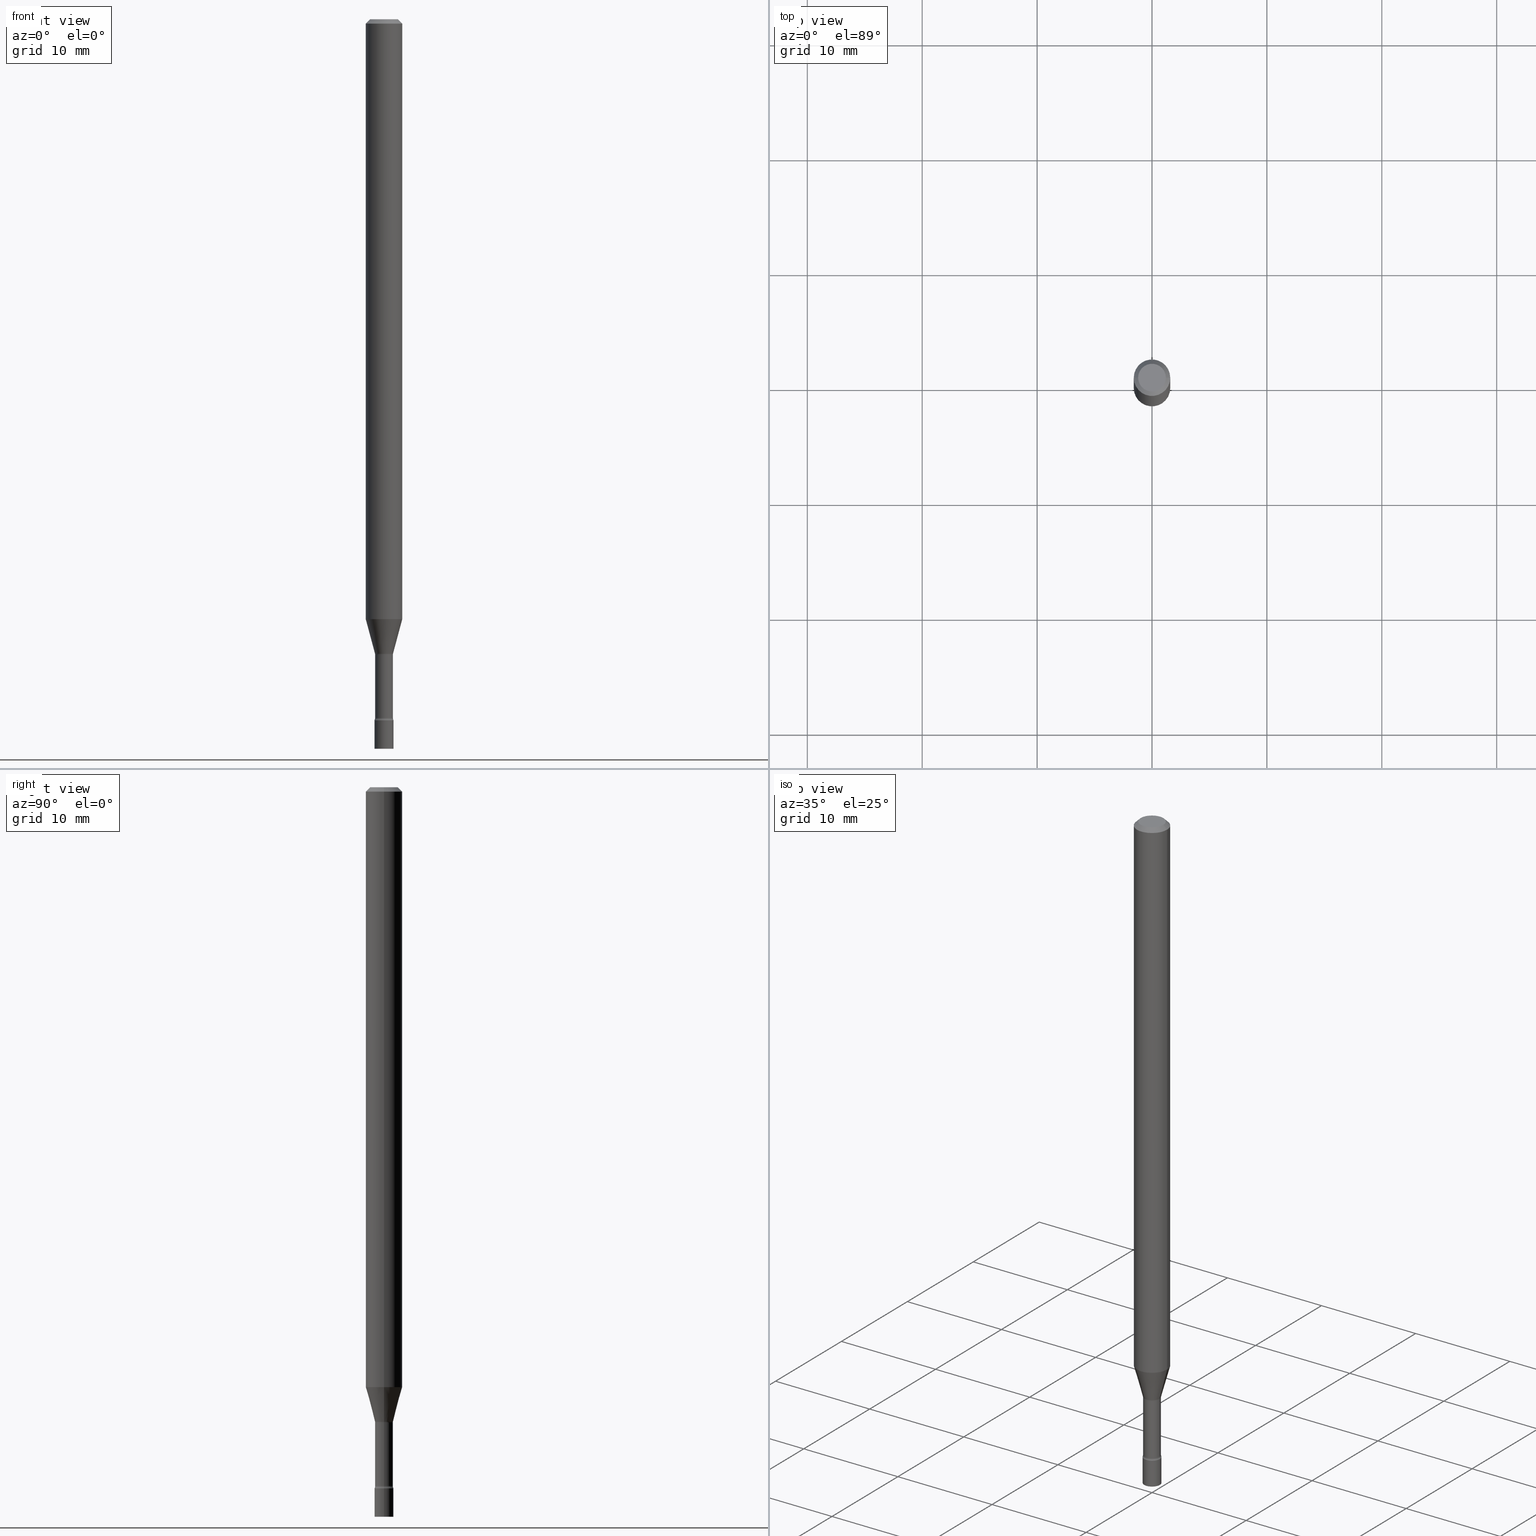
[diagram: canonical four-view strip — front | top / right | iso, engineering-drawing reading convention]
A machine part, canonical four-view strip (front | top / right | iso — engineering-drawing reading convention). The complete STEP part file that produces these views, byte-faithful:
ISO-10303-21;
HEADER;
FILE_DESCRIPTION (( 'STEP AP203' ),
    '1' );
FILE_NAME ('09698.STEP',
    '2024-03-09T00:57:55',
    ( '' ),
    ( '' ),
    'SwSTEP 2.0',
    'SolidWorks 2023',
    '' );
FILE_SCHEMA (( 'CONFIG_CONTROL_DESIGN' ));
ENDSEC;

DATA;
#1 = CARTESIAN_POINT ( 'NONE',  ( 5.314229926075595065E-29, -7.587311917570229795E-15, -2.173092501787273090 ) ) ;
#2 = COORDINATED_UNIVERSAL_TIME_OFFSET ( 5, 0, .BEHIND. ) ;
#3 = DIRECTION ( 'NONE',  ( 1.000000000000000000, -6.982962677686265922E-15, 4.876176775795935793E-29 ) ) ;
#4 = CONICAL_SURFACE ( 'NONE', #186, 0.03106111260566397914, 0.2617993877991498519 ) ;
#5 = MANIFOLD_SOLID_BREP ( 'Body-Move/Copy2[2]', #91 ) ;
#6 = DIRECTION ( 'NONE',  ( -2.445468806185136877E-29, 3.491481338843145188E-15, 1.000000000000000000 ) ) ;
#7 = PRODUCT_RELATED_PRODUCT_CATEGORY ( 'detail', '', ( #224 ) ) ;
#8 = DIRECTION ( 'NONE',  ( 1.000000000000000000, -6.982962677686266711E-15, 4.876176775795935793E-29 ) ) ;
#9 = AXIS2_PLACEMENT_3D ( 'NONE', #301, #376, #464 ) ;
#10 = ORIENTED_EDGE ( 'NONE', *, *, #505, .F. ) ;
#11 = DIRECTION ( 'NONE',  ( 1.000000000000000000, -6.982962677686287221E-15, 0.000000000000000000 ) ) ;
#12 = CARTESIAN_POINT ( 'NONE',  ( 3.316907271900976096E-16, 0.04749999999999999362, -1.803023190589839165E-16 ) ) ;
#13 = ORIENTED_EDGE ( 'NONE', *, *, #243, .F. ) ;
#14 = VERTEX_POINT ( 'NONE', #256 ) ;
#15 = APPROVAL_PERSON_ORGANIZATION ( #499, #404, #461 ) ;
#16 = VECTOR ( 'NONE', #208, 39.37007874015748143 ) ;
#17 = DIRECTION ( 'NONE',  ( 2.445468806185136597E-29, -3.491481338843145583E-15, -1.000000000000000000 ) ) ;
#18 = ORIENTED_EDGE ( 'NONE', *, *, #243, .T. ) ;
#19 = ADVANCED_FACE ( 'NONE', ( #96 ), #490, .T. ) ;
#20 = PERSON_AND_ORGANIZATION ( #158, #23 ) ;
#21 = DIRECTION ( 'NONE',  ( 1.000000000000000000, -6.982962677686276177E-15, 0.000000000000000000 ) ) ;
#22 = AXIS2_PLACEMENT_3D ( 'NONE', #294, #338, #63 ) ;
#23 = ORGANIZATION ( 'UNSPECIFIED', 'UNSPECIFIED', '' ) ;
#24 = APPROVAL_DATE_TIME ( #382, #404 ) ;
#25 = ADVANCED_FACE ( 'NONE', ( #59 ), #106, .F. ) ;
#26 = DIRECTION ( 'NONE',  ( -2.445468806185136597E-29, 3.491481338843145583E-15, 1.000000000000000000 ) ) ;
#27 = ORIENTED_EDGE ( 'NONE', *, *, #66, .F. ) ;
#28 = CC_DESIGN_DATE_AND_TIME_ASSIGNMENT ( #380, #218, ( #253 ) ) ;
#29 = CARTESIAN_POINT ( 'NONE',  ( 0.06250000000000000000, -4.888073874380389458E-16, -0.01500000000000003067 ) ) ;
#30 = ADVANCED_FACE ( 'NONE', ( #185 ), #4, .T. ) ;
#31 = DIRECTION ( 'NONE',  ( -1.000000000000000000, 6.982962677686266711E-15, 0.000000000000000000 ) ) ;
#32 = DIRECTION ( 'NONE',  ( -2.445468806185136597E-29, 3.491481338843145583E-15, 1.000000000000000000 ) ) ;
#33 = VECTOR ( 'NONE', #485, 39.37007874015748143 ) ;
#34 = CONICAL_SURFACE ( 'NONE', #372, 0.03106111260566397914, 0.2617993877991498519 ) ;
#35 = APPLICATION_PROTOCOL_DEFINITION ( 'international standard', 'config_control_design', 1994, #263 ) ;
#36 = ADVANCED_FACE ( 'NONE', ( #383 ), #358, .T. ) ;
#37 = DIRECTION ( 'NONE',  ( 0.2588190451025211281, 1.565188264969622954E-15, 0.9659258262890679791 ) ) ;
#38 = EDGE_LOOP ( 'NONE', ( #200, #143, #206, #470 ) ) ;
#39 = EDGE_CURVE ( 'NONE', #153, #374, #337, .T. ) ;
#40 = CARTESIAN_POINT ( 'NONE',  ( -0.04749999999999999362, 3.578768372314209027E-16, -2.891391092787141902E-17 ) ) ;
#41 = ORIENTED_EDGE ( 'NONE', *, *, #90, .T. ) ;
#42 = DIRECTION ( 'NONE',  ( -2.445468806185136597E-29, 3.491481338843145583E-15, 1.000000000000000000 ) ) ;
#43 = ORIENTED_EDGE ( 'NONE', *, *, #39, .T. ) ;
#44 = CARTESIAN_POINT ( 'NONE',  ( 5.027299341488075466E-29, -7.177651087263634781E-15, -2.055760976698174591 ) ) ;
#45 = CIRCLE ( 'NONE', #321, 0.06250000000000000000 ) ;
#46 = CC_DESIGN_PERSON_AND_ORGANIZATION_ASSIGNMENT ( #427, #163, ( #403 ) ) ;
#47 = CALENDAR_DATE ( 2024, 8, 3 ) ;
#48 = PLANE ( 'NONE',  #388 ) ;
#49 = DATE_TIME_ROLE ( 'classification_date' ) ;
#50 = DIRECTION ( 'NONE',  ( -2.445468806185136877E-29, 3.491481338843145188E-15, 1.000000000000000000 ) ) ;
#51 =( GEOMETRIC_REPRESENTATION_CONTEXT ( 3 ) GLOBAL_UNCERTAINTY_ASSIGNED_CONTEXT ( ( #149 ) ) GLOBAL_UNIT_ASSIGNED_CONTEXT ( ( #155, #270, #226 ) ) REPRESENTATION_CONTEXT ( 'NONE', 'WORKASPACE' ) );
#52 = EDGE_CURVE ( 'NONE', #139, #474, #472, .T. ) ;
#53 = CARTESIAN_POINT ( 'NONE',  ( -0.03249999999999995948, -8.155611786779205250E-15, -2.402000000000000135 ) ) ;
#54 = AXIS2_PLACEMENT_3D ( 'NONE', #279, #202, #473 ) ;
#55 = ORIENTED_EDGE ( 'NONE', *, *, #308, .F. ) ;
#56 = ADVANCED_FACE ( 'NONE', ( #291 ), #459, .T. ) ;
#57 = DIRECTION ( 'NONE',  ( -1.000000000000000000, 6.982962677686265922E-15, -4.876176775795935793E-29 ) ) ;
#58 = DIRECTION ( 'NONE',  ( 1.000000000000000000, -6.982962677686266711E-15, 4.876176775795935793E-29 ) ) ;
#59 = FACE_OUTER_BOUND ( 'NONE', #136, .T. ) ;
#60 = CARTESIAN_POINT ( 'NONE',  ( 0.03055000000000000077, -7.814196355365236006E-15, -2.176974787463811012 ) ) ;
#61 = FACE_OUTER_BOUND ( 'NONE', #118, .T. ) ;
#62 = DESIGN_CONTEXT ( 'detailed design', #121, 'design' ) ;
#63 = DIRECTION ( 'NONE',  ( 1.000000000000000000, -6.982962677686258033E-15, 0.000000000000000000 ) ) ;
#64 = ORIENTED_EDGE ( 'NONE', *, *, #514, .F. ) ;
#65 = CIRCLE ( 'NONE', #54, 0.01499999999999992485 ) ;
#66 = EDGE_CURVE ( 'NONE', #109, #425, #225, .T. ) ;
#67 = DIRECTION ( 'NONE',  ( 1.000000000000000000, -6.982962677686266711E-15, 4.876176775795935793E-29 ) ) ;
#68 = DIRECTION ( 'NONE',  ( 1.000000000000000000, -6.982962677686265922E-15, 4.876176775795935793E-29 ) ) ;
#69 = AXIS2_PLACEMENT_3D ( 'NONE', #515, #42, #303 ) ;
#70 = VECTOR ( 'NONE', #50, 39.37007874015748143 ) ;
#71 = DIRECTION ( 'NONE',  ( -2.445468806185136877E-29, 3.491481338843145188E-15, 1.000000000000000000 ) ) ;
#72 = EDGE_LOOP ( 'NONE', ( #289, #162, #344, #311 ) ) ;
#73 = ADVANCED_FACE ( 'NONE', ( #61 ), #498, .T. ) ;
#74 = CIRCLE ( 'NONE', #262, 0.03055000000000008750 ) ;
#75 = DIRECTION ( 'NONE',  ( -2.445468806185136597E-29, 3.491481338843145583E-15, 1.000000000000000000 ) ) ;
#76 = ORIENTED_EDGE ( 'NONE', *, *, #125, .T. ) ;
#77 = AXIS2_PLACEMENT_3D ( 'NONE', #313, #194, #119 ) ;
#78 = LINE ( 'NONE', #83, #214 ) ;
#79 = VERTEX_POINT ( 'NONE', #53 ) ;
#80 = EDGE_LOOP ( 'NONE', ( #441, #280 ) ) ;
#81 = DIRECTION ( 'NONE',  ( 0.000000000000000000, 0.000000000000000000, 1.000000000000000000 ) ) ;
#82 = AXIS2_PLACEMENT_3D ( 'NONE', #443, #81, #114 ) ;
#83 = CARTESIAN_POINT ( 'NONE',  ( -0.06250000000000000000, 3.840629472727443437E-16, -0.01500000000000003067 ) ) ;
#84 = ORIENTED_EDGE ( 'NONE', *, *, #361, .T. ) ;
#85 = CC_DESIGN_PERSON_AND_ORGANIZATION_ASSIGNMENT ( #188, #339, ( #191 ) ) ;
#86 = ADVANCED_FACE ( 'NONE', ( #141 ), #343, .T. ) ;
#87 = AXIS2_PLACEMENT_3D ( 'NONE', #255, #419, #58 ) ;
#88 = LINE ( 'NONE', #405, #70 ) ;
#89 = FACE_OUTER_BOUND ( 'NONE', #116, .T. ) ;
#90 = EDGE_CURVE ( 'NONE', #466, #425, #345, .T. ) ;
#91 = CLOSED_SHELL ( 'NONE', ( #281, #379, #146, #73, #249, #157, #30, #413, #36, #92, #322, #151, #97, #25 ) ) ;
#92 = ADVANCED_FACE ( 'NONE', ( #267 ), #215, .F. ) ;
#93 = PLANE ( 'NONE',  #254 ) ;
#94 = APPROVAL_STATUS ( 'not_yet_approved' ) ;
#95 = ORIENTED_EDGE ( 'NONE', *, *, #449, .F. ) ;
#96 = FACE_OUTER_BOUND ( 'NONE', #72, .T. ) ;
#97 = ADVANCED_FACE ( 'NONE', ( #98 ), #295, .T. ) ;
#98 = FACE_OUTER_BOUND ( 'NONE', #359, .T. ) ;
#99 = VECTOR ( 'NONE', #389, 39.37007874015748143 ) ;
#100 = DIRECTION ( 'NONE',  ( 1.000000000000000000, -6.982962677686265922E-15, 4.876176775795935232E-29 ) ) ;
#101 = PERSON_AND_ORGANIZATION_ROLE ( 'creator' ) ;
#102 = CARTESIAN_POINT ( 'NONE',  ( 0.03250000000000000111, -8.613484462926039396E-15, -2.402000000000000135 ) ) ;
#103 = DIRECTION ( 'NONE',  ( -2.445468806185136597E-29, 3.491481338843145583E-15, 1.000000000000000000 ) ) ;
#104 = ORIENTED_EDGE ( 'NONE', *, *, #127, .T. ) ;
#105 = SECURITY_CLASSIFICATION_LEVEL ( 'unclassified' ) ;
#106 = TOROIDAL_SURFACE ( 'NONE', #417, 0.04555000000000000021, 0.01500000000000002720 ) ;
#107 = CARTESIAN_POINT ( 'NONE',  ( 5.323723934594267807E-29, -7.600866845561919593E-15, -2.176974787463811012 ) ) ;
#108 = ORIENTED_EDGE ( 'NONE', *, *, #113, .F. ) ;
#109 = VERTEX_POINT ( 'NONE', #217 ) ;
#110 = CC_DESIGN_PERSON_AND_ORGANIZATION_ASSIGNMENT ( #502, #148, ( #191 ) ) ;
#111 = FACE_OUTER_BOUND ( 'NONE', #228, .T. ) ;
#112 = ORIENTED_EDGE ( 'NONE', *, *, #125, .F. ) ;
#113 = EDGE_CURVE ( 'NONE', #109, #153, #518, .T. ) ;
#114 = DIRECTION ( 'NONE',  ( 1.000000000000000000, 0.000000000000000000, 0.000000000000000000 ) ) ;
#115 = DIRECTION ( 'NONE',  ( -2.445468806185136597E-29, 3.491481338843145583E-15, 1.000000000000000000 ) ) ;
#116 = EDGE_LOOP ( 'NONE', ( #252, #10 ) ) ;
#117 = FACE_OUTER_BOUND ( 'NONE', #377, .T. ) ;
#118 = EDGE_LOOP ( 'NONE', ( #453, #154, #274, #314 ) ) ;
#119 = DIRECTION ( 'NONE',  ( 1.000000000000000000, -6.982962677686266711E-15, 0.000000000000000000 ) ) ;
#120 = ORIENTED_EDGE ( 'NONE', *, *, #354, .F. ) ;
#121 = APPLICATION_CONTEXT ( 'configuration controlled 3d designs of mechanical parts and assemblies' ) ;
#122 = DIRECTION ( 'NONE',  ( 1.000000000000000000, -6.982962677686267499E-15, 4.876681293081646444E-29 ) ) ;
#123 = CIRCLE ( 'NONE', #319, 0.03106111260566397914 ) ;
#124 = CIRCLE ( 'NONE', #77, 0.06250000000000000000 ) ;
#125 = EDGE_CURVE ( 'NONE', #235, #292, #326, .T. ) ;
#126 = LINE ( 'NONE', #130, #517 ) ;
#127 = EDGE_CURVE ( 'NONE', #269, #466, #131, .T. ) ;
#128 = CARTESIAN_POINT ( 'NONE',  ( 0.04749999999999999362, -4.035134999187579609E-16, -2.891391092786643933E-17 ) ) ;
#129 = CC_DESIGN_APPROVAL ( #170, ( #253 ) ) ;
#130 = CARTESIAN_POINT ( 'NONE',  ( -0.06250000000000000000, 4.440892098500626162E-16, -3.074334431409316114E-30 ) ) ;
#131 = CIRCLE ( 'NONE', #437, 0.01500000000000002720 ) ;
#132 = EDGE_CURVE ( 'NONE', #109, #79, #65, .T. ) ;
#133 = EDGE_CURVE ( 'NONE', #139, #452, #355, .T. ) ;
#134 = DIMENSIONAL_EXPONENTS ( 1.000000000000000000, 0.000000000000000000, 0.000000000000000000, 0.000000000000000000, 0.000000000000000000, 0.000000000000000000, 0.000000000000000000 ) ;
#135 = EDGE_CURVE ( 'NONE', #272, #504, #315, .T. ) ;
#136 = EDGE_LOOP ( 'NONE', ( #237, #203, #104, #41 ) ) ;
#137 = CYLINDRICAL_SURFACE ( 'NONE', #265, 0.06250000000000000000 ) ;
#138 = CARTESIAN_POINT ( 'NONE',  ( 0.000000000000000000, 0.000000000000000000, 0.000000000000000000 ) ) ;
#139 = VERTEX_POINT ( 'NONE', #469 ) ;
#140 = CARTESIAN_POINT ( 'NONE',  ( 5.323723934594267807E-29, -7.600866845561919593E-15, -2.176974787463811012 ) ) ;
#141 = FACE_OUTER_BOUND ( 'NONE', #38, .T. ) ;
#142 = AXIS2_PLACEMENT_3D ( 'NONE', #414, #384, #257 ) ;
#143 = ORIENTED_EDGE ( 'NONE', *, *, #299, .T. ) ;
#144 = AXIS2_PLACEMENT_3D ( 'NONE', #12, #330, #454 ) ;
#145 = EDGE_CURVE ( 'NONE', #504, #435, #124, .T. ) ;
#146 = ADVANCED_FACE ( 'NONE', ( #117 ), #401, .F. ) ;
#147 = DIRECTION ( 'NONE',  ( -2.445468806185136597E-29, 3.491481338843145583E-15, 1.000000000000000000 ) ) ;
#148 = PERSON_AND_ORGANIZATION_ROLE ( 'design_supplier' ) ;
#149 = UNCERTAINTY_MEASURE_WITH_UNIT (LENGTH_MEASURE( 1.000000000000000082E-05 ), #155, 'distance_accuracy_value', 'NONE');
#150 = CARTESIAN_POINT ( 'NONE',  ( -0.03106111260566397914, -7.366609438304418534E-15, -2.173092501787273090 ) ) ;
#151 = ADVANCED_FACE ( 'NONE', ( #400 ), #463, .F. ) ;
#152 = DIRECTION ( 'NONE',  ( -2.445468806185136597E-29, 3.491481338843145583E-15, 1.000000000000000000 ) ) ;
#153 = VERTEX_POINT ( 'NONE', #360 ) ;
#154 = ORIENTED_EDGE ( 'NONE', *, *, #308, .T. ) ;
#155 =( CONVERSION_BASED_UNIT ( 'INCH', #397 ) LENGTH_UNIT ( ) NAMED_UNIT ( #134 ) );
#156 = DIRECTION ( 'NONE',  ( -2.445468806185136597E-29, 3.491481338843145583E-15, 1.000000000000000000 ) ) ;
#157 = ADVANCED_FACE ( 'NONE', ( #346 ), #34, .T. ) ;
#158 = PERSON ( 'UNSPECIFIED', 'UNSPECIFIED', 'UNSPECIFIED', ('UNSPECIFIED'), ('UNSPECIFIED'), ('UNSPECIFIED') ) ;
#159 = LINE ( 'NONE', #467, #172 ) ;
#160 = ORIENTED_EDGE ( 'NONE', *, *, #39, .F. ) ;
#161 = CARTESIAN_POINT ( 'NONE',  ( 0.03106111260566397914, -7.804210507622991467E-15, -2.173092501787273090 ) ) ;
#162 = ORIENTED_EDGE ( 'NONE', *, *, #442, .T. ) ;
#163 = PERSON_AND_ORGANIZATION_ROLE ( 'classification_officer' ) ;
#164 = AXIS2_PLACEMENT_3D ( 'NONE', #179, #455, #100 ) ;
#165 = CARTESIAN_POINT ( 'NONE',  ( 0.06250000000000000000, -7.614086254619026450E-15, -2.055760976698174591 ) ) ;
#166 = ORIENTED_EDGE ( 'NONE', *, *, #233, .T. ) ;
#167 = DIRECTION ( 'NONE',  ( 7.105427357601001859E-15, 1.000000000000000000, -3.491481338843145583E-15 ) ) ;
#168 = CALENDAR_DATE ( 2024, 8, 3 ) ;
#169 = CALENDAR_DATE ( 2024, 8, 3 ) ;
#170 = APPROVAL ( #246, 'UNSPECIFIED' ) ;
#171 = CIRCLE ( 'NONE', #391, 0.03055000000000000077 ) ;
#172 = VECTOR ( 'NONE', #37, 39.37007874015748854 ) ;
#173 = EDGE_CURVE ( 'NONE', #374, #79, #275, .T. ) ;
#174 = LINE ( 'NONE', #369, #33 ) ;
#175 = AXIS2_PLACEMENT_3D ( 'NONE', #107, #492, #178 ) ;
#176 = COORDINATED_UNIVERSAL_TIME_OFFSET ( 5, 0, .BEHIND. ) ;
#177 = CARTESIAN_POINT ( 'NONE',  ( 5.874016072456698366E-29, -8.386538175901236044E-15, -2.402000000000000135 ) ) ;
#178 = DIRECTION ( 'NONE',  ( 1.000000000000000000, -6.982962677686264344E-15, 0.000000000000000000 ) ) ;
#179 = CARTESIAN_POINT ( 'NONE',  ( 0.000000000000000000, 0.000000000000000000, 0.000000000000000000 ) ) ;
#180 = MANIFOLD_SOLID_BREP ( 'Body-Move/Copy2[1]', #367 ) ;
#181 = DIRECTION ( 'NONE',  ( -2.445468806185136597E-29, 3.491481338843145583E-15, 1.000000000000000000 ) ) ;
#182 = CC_DESIGN_PERSON_AND_ORGANIZATION_ASSIGNMENT ( #471, #312, ( #224 ) ) ;
#183 = DIRECTION ( 'NONE',  ( 1.000000000000000000, -6.982962677686262766E-15, 4.883557194083111780E-29 ) ) ;
#184 = ORIENTED_EDGE ( 'NONE', *, *, #113, .T. ) ;
#185 = FACE_OUTER_BOUND ( 'NONE', #496, .T. ) ;
#186 = AXIS2_PLACEMENT_3D ( 'NONE', #462, #26, #222 ) ;
#187 = EDGE_CURVE ( 'NONE', #402, #425, #409, .T. ) ;
#188 = PERSON_AND_ORGANIZATION ( #158, #23 ) ;
#189 = DIRECTION ( 'NONE',  ( -1.000000000000000000, 6.982962677686266711E-15, 0.000000000000000000 ) ) ;
#190 = EDGE_LOOP ( 'NONE', ( #55, #112, #195, #84 ) ) ;
#191 = PRODUCT_DEFINITION_FORMATION_WITH_SPECIFIED_SOURCE ( 'ANY', '', #224, .NOT_KNOWN. ) ;
#192 = DIRECTION ( 'NONE',  ( -2.438088387897960049E-29, 3.491481338843145188E-15, 1.000000000000000000 ) ) ;
#193 = EDGE_CURVE ( 'NONE', #235, #435, #78, .T. ) ;
#194 = DIRECTION ( 'NONE',  ( -2.445468806185136597E-29, 3.491481338843145583E-15, 1.000000000000000000 ) ) ;
#195 = ORIENTED_EDGE ( 'NONE', *, *, #193, .T. ) ;
#196 = EDGE_CURVE ( 'NONE', #269, #272, #159, .T. ) ;
#197 = MECHANICAL_CONTEXT ( 'NONE', #263, 'mechanical' ) ;
#198 = EDGE_LOOP ( 'NONE', ( #399, #493, #408, #520 ) ) ;
#199 = CYLINDRICAL_SURFACE ( 'NONE', #69, 0.06250000000000000000 ) ;
#200 = ORIENTED_EDGE ( 'NONE', *, *, #52, .T. ) ;
#201 = CIRCLE ( 'NONE', #239, 0.06250000000000000000 ) ;
#202 = DIRECTION ( 'NONE',  ( 7.105427357601001859E-15, 1.000000000000000000, -3.491481338843145583E-15 ) ) ;
#203 = ORIENTED_EDGE ( 'NONE', *, *, #283, .F. ) ;
#204 = LOCAL_TIME ( 19, 57, 55.00000000000000000, #2 ) ;
#205 = AXIS2_PLACEMENT_3D ( 'NONE', #285, #241, #8 ) ;
#206 = ORIENTED_EDGE ( 'NONE', *, *, #430, .F. ) ;
#207 = APPROVAL_PERSON_ORGANIZATION ( #320, #300, #445 ) ;
#208 = DIRECTION ( 'NONE',  ( 0.7071067811865475727, -7.319954787623256045E-15, -0.7071067811865474617 ) ) ;
#209 = AXIS2_PLACEMENT_3D ( 'NONE', #177, #329, #491 ) ;
#210 = AXIS2_PLACEMENT_3D ( 'NONE', #429, #192, #68 ) ;
#211 = EDGE_CURVE ( 'NONE', #292, #235, #457, .T. ) ;
#212 = CARTESIAN_POINT ( 'NONE',  ( 5.323723934594267807E-29, -7.600866845561919593E-15, -2.176974787463811012 ) ) ;
#213 = CIRCLE ( 'NONE', #22, 0.03250000000000000111 ) ;
#214 = VECTOR ( 'NONE', #238, 39.37007874015748143 ) ;
#215 = PLANE ( 'NONE',  #144 ) ;
#216 = DIRECTION ( 'NONE',  ( 2.438088387897960049E-29, -3.491481338843145188E-15, -1.000000000000000000 ) ) ;
#217 = CARTESIAN_POINT ( 'NONE',  ( -0.03055000000000008750, -8.149628471819570133E-15, -2.394604224178627838 ) ) ;
#218 = DATE_TIME_ROLE ( 'creation_date' ) ;
#219 = CARTESIAN_POINT ( 'NONE',  ( 3.668203209277712094E-31, -5.237222008264728876E-17, -0.01500000000000003067 ) ) ;
#220 = CALENDAR_DATE ( 2024, 8, 3 ) ;
#221 = CARTESIAN_POINT ( 'NONE',  ( -0.06250000000000000000, -3.170922443823078906E-15, -0.01500000000000003067 ) ) ;
#222 = DIRECTION ( 'NONE',  ( 1.000000000000000000, -6.982962677686265922E-15, 0.000000000000000000 ) ) ;
#223 = AXIS2_PLACEMENT_3D ( 'NONE', #138, #103, #506 ) ;
#224 = PRODUCT ( '09698', '09698', '', ( #197 ) ) ;
#225 = LINE ( 'NONE', #500, #293 ) ;
#226 =( NAMED_UNIT ( * ) SI_UNIT ( $, .STERADIAN. ) SOLID_ANGLE_UNIT ( ) );
#227 = DIRECTION ( 'NONE',  ( 1.000000000000000000, -6.982962677686258033E-15, 4.883557194083110098E-29 ) ) ;
#228 = EDGE_LOOP ( 'NONE', ( #328, #335, #432, #232 ) ) ;
#229 = ORIENTED_EDGE ( 'NONE', *, *, #433, .T. ) ;
#230 =( LENGTH_UNIT ( ) NAMED_UNIT ( * ) SI_UNIT ( $, .METRE. ) );
#231 = DIRECTION ( 'NONE',  ( -6.982962677686266711E-15, -1.000000000000000000, 3.491481338843145583E-15 ) ) ;
#232 = ORIENTED_EDGE ( 'NONE', *, *, #127, .F. ) ;
#233 = EDGE_CURVE ( 'NONE', #14, #452, #486, .T. ) ;
#234 = CARTESIAN_POINT ( 'NONE',  ( -0.04555000000000000021, -7.277214629423194105E-15, -2.176974787463811012 ) ) ;
#235 = VERTEX_POINT ( 'NONE', #40 ) ;
#236 = DIRECTION ( 'NONE',  ( 1.000000000000000000, -6.982962677686265922E-15, 0.000000000000000000 ) ) ;
#237 = ORIENTED_EDGE ( 'NONE', *, *, #187, .F. ) ;
#238 = DIRECTION ( 'NONE',  ( -0.7071067811865475727, 2.468850131082257455E-15, -0.7071067811865474617 ) ) ;
#239 = AXIS2_PLACEMENT_3D ( 'NONE', #284, #407, #489 ) ;
#240 = AXIS2_PLACEMENT_3D ( 'NONE', #306, #115, #273 ) ;
#241 = DIRECTION ( 'NONE',  ( -2.445468806185136597E-29, 3.491481338843145583E-15, 1.000000000000000000 ) ) ;
#242 = DIRECTION ( 'NONE',  ( -2.445468806185136597E-29, 3.491481338843145583E-15, 1.000000000000000000 ) ) ;
#243 = EDGE_CURVE ( 'NONE', #511, #272, #45, .T. ) ;
#244 = DIRECTION ( 'NONE',  ( 1.000000000000000000, -6.982962677686265922E-15, 0.000000000000000000 ) ) ;
#245 = AXIS2_PLACEMENT_3D ( 'NONE', #334, #381, #21 ) ;
#246 = APPROVAL_STATUS ( 'not_yet_approved' ) ;
#247 = ORIENTED_EDGE ( 'NONE', *, *, #211, .T. ) ;
#248 = DIRECTION ( 'NONE',  ( -2.445468806185136597E-29, 3.491481338843145583E-15, 1.000000000000000000 ) ) ;
#249 = ADVANCED_FACE ( 'NONE', ( #431 ), #199, .T. ) ;
#250 = CC_DESIGN_APPROVAL ( #300, ( #403 ) ) ;
#251 = DIRECTION ( 'NONE',  ( -2.445468806185136597E-29, 3.491481338843145583E-15, 1.000000000000000000 ) ) ;
#252 = ORIENTED_EDGE ( 'NONE', *, *, #173, .F. ) ;
#253 = PRODUCT_DEFINITION ( 'UNKNOWN', '', #191, #62 ) ;
#254 = AXIS2_PLACEMENT_3D ( 'NONE', #418, #216, #57 ) ;
#255 = CARTESIAN_POINT ( 'NONE',  ( 0.000000000000000000, 0.000000000000000000, 0.000000000000000000 ) ) ;
#256 = CARTESIAN_POINT ( 'NONE',  ( -0.03250000000000000111, -8.326694372382518911E-15, -2.402000000000000135 ) ) ;
#257 = DIRECTION ( 'NONE',  ( 1.000000000000000000, -6.982962677686262766E-15, 0.000000000000000000 ) ) ;
#258 = DIRECTION ( 'NONE',  ( 1.000000000000000000, -6.982962677686238312E-15, 0.000000000000000000 ) ) ;
#259 = COORDINATED_UNIVERSAL_TIME_OFFSET ( 5, 0, .BEHIND. ) ;
#260 = FACE_OUTER_BOUND ( 'NONE', #513, .T. ) ;
#261 = DIRECTION ( 'NONE',  ( 2.445468806185136597E-29, -3.491481338843145583E-15, -1.000000000000000000 ) ) ;
#262 = AXIS2_PLACEMENT_3D ( 'NONE', #411, #481, #365 ) ;
#263 = APPLICATION_CONTEXT ( 'configuration controlled 3d designs of mechanical parts and assemblies' ) ;
#264 = CARTESIAN_POINT ( 'NONE',  ( -0.03106111260566397914, -7.050085657858996138E-15, -2.173092501787273090 ) ) ;
#265 = AXIS2_PLACEMENT_3D ( 'NONE', #426, #181, #67 ) ;
#266 = AXIS2_PLACEMENT_3D ( 'NONE', #271, #75, #227 ) ;
#267 = FACE_OUTER_BOUND ( 'NONE', #420, .T. ) ;
#268 = ORIENTED_EDGE ( 'NONE', *, *, #505, .T. ) ;
#269 = VERTEX_POINT ( 'NONE', #161 ) ;
#270 =( NAMED_UNIT ( * ) PLANE_ANGLE_UNIT ( ) SI_UNIT ( $, .RADIAN. ) );
#271 = CARTESIAN_POINT ( 'NONE',  ( 5.855929933387994717E-29, -8.360715962634647749E-15, -2.394604224178627838 ) ) ;
#272 = VERTEX_POINT ( 'NONE', #165 ) ;
#273 = DIRECTION ( 'NONE',  ( 1.000000000000000000, -6.982962677686258033E-15, 0.000000000000000000 ) ) ;
#274 = ORIENTED_EDGE ( 'NONE', *, *, #145, .T. ) ;
#275 = CIRCLE ( 'NONE', #240, 0.03250000000000000111 ) ;
#276 = CARTESIAN_POINT ( 'NONE',  ( 5.855929933387994717E-29, -8.360715962634647749E-15, -2.394604224178627838 ) ) ;
#277 = ORIENTED_EDGE ( 'NONE', *, *, #66, .T. ) ;
#278 = SHAPE_DEFINITION_REPRESENTATION ( #410, #316 ) ;
#279 = CARTESIAN_POINT ( 'NONE',  ( -0.04555000000000000715, -8.037063746495922261E-15, -2.394604224178627838 ) ) ;
#280 = ORIENTED_EDGE ( 'NONE', *, *, #442, .F. ) ;
#281 = ADVANCED_FACE ( 'NONE', ( #111 ), #448, .F. ) ;
#282 = CARTESIAN_POINT ( 'NONE',  ( 0.03249999999999995948, -8.613484462926039396E-15, -2.402000000000000135 ) ) ;
#283 = EDGE_CURVE ( 'NONE', #269, #402, #352, .T. ) ;
#284 = CARTESIAN_POINT ( 'NONE',  ( 3.668203209277712094E-31, -5.237222008264728876E-17, -0.01500000000000003067 ) ) ;
#285 = CARTESIAN_POINT ( 'NONE',  ( 0.000000000000000000, 0.000000000000000000, 0.000000000000000000 ) ) ;
#286 = AXIS2_PLACEMENT_3D ( 'NONE', #276, #32, #512 ) ;
#287 = AXIS2_PLACEMENT_3D ( 'NONE', #219, #261, #189 ) ;
#288 = CARTESIAN_POINT ( 'NONE',  ( 0.06250000000000000000, -4.811533449433680977E-16, -0.01500000000000003067 ) ) ;
#289 = ORIENTED_EDGE ( 'NONE', *, *, #299, .F. ) ;
#290 = CARTESIAN_POINT ( 'NONE',  ( -0.06250000000000000000, -6.733561877413572165E-15, -2.055760976698174591 ) ) ;
#291 = FACE_OUTER_BOUND ( 'NONE', #325, .T. ) ;
#292 = VERTEX_POINT ( 'NONE', #128 ) ;
#293 = VECTOR ( 'NONE', #495, 39.37007874015748143 ) ;
#294 = CARTESIAN_POINT ( 'NONE',  ( 5.874016072456698366E-29, -8.386538175901236044E-15, -2.402000000000000135 ) ) ;
#295 = CYLINDRICAL_SURFACE ( 'NONE', #87, 0.03055000000000004240 ) ;
#296 = APPROVAL_STATUS ( 'not_yet_approved' ) ;
#297 = DIRECTION ( 'NONE',  ( -2.445468806185136597E-29, 3.491481338843145583E-15, 1.000000000000000000 ) ) ;
#298 = DIRECTION ( 'NONE',  ( 1.000000000000000000, -6.982962677686267499E-15, 4.876681293081646444E-29 ) ) ;
#299 = EDGE_CURVE ( 'NONE', #474, #14, #88, .T. ) ;
#300 = APPROVAL ( #94, 'UNSPECIFIED' ) ;
#301 = CARTESIAN_POINT ( 'NONE',  ( 6.113672015462842613E-29, -8.728703347107864943E-15, -2.500000000000000000 ) ) ;
#302 = COORDINATED_UNIVERSAL_TIME_OFFSET ( 5, 0, .BEHIND. ) ;
#303 = DIRECTION ( 'NONE',  ( 1.000000000000000000, -6.982962677686266711E-15, 4.876176775795935793E-29 ) ) ;
#304 = ORIENTED_EDGE ( 'NONE', *, *, #371, .F. ) ;
#305 = LOCAL_TIME ( 19, 57, 55.00000000000000000, #259 ) ;
#306 = CARTESIAN_POINT ( 'NONE',  ( 5.874016072456698366E-29, -8.386538175901236044E-15, -2.402000000000000135 ) ) ;
#307 = ORIENTED_EDGE ( 'NONE', *, *, #361, .F. ) ;
#308 = EDGE_CURVE ( 'NONE', #292, #504, #484, .T. ) ;
#309 = CARTESIAN_POINT ( 'NONE',  ( 5.314229926075595065E-29, -7.587311917570229795E-15, -2.173092501787273090 ) ) ;
#310 = AXIS2_PLACEMENT_3D ( 'NONE', #494, #297, #11 ) ;
#311 = ORIENTED_EDGE ( 'NONE', *, *, #233, .F. ) ;
#312 = PERSON_AND_ORGANIZATION_ROLE ( 'design_owner' ) ;
#313 = CARTESIAN_POINT ( 'NONE',  ( 3.668203209277712094E-31, -5.237222008264728876E-17, -0.01500000000000003067 ) ) ;
#314 = ORIENTED_EDGE ( 'NONE', *, *, #193, .F. ) ;
#315 = LINE ( 'NONE', #476, #99 ) ;
#316 = ADVANCED_BREP_SHAPE_REPRESENTATION ( '09698', ( #180, #5, #82 ), #51 ) ;
#317 = CARTESIAN_POINT ( 'NONE',  ( 5.323723934594267807E-29, -7.600866845561919593E-15, -2.176974787463811012 ) ) ;
#318 = DATE_AND_TIME ( #47, #422 ) ;
#319 = AXIS2_PLACEMENT_3D ( 'NONE', #342, #251, #373 ) ;
#320 = PERSON_AND_ORGANIZATION ( #158, #23 ) ;
#321 = AXIS2_PLACEMENT_3D ( 'NONE', #44, #434, #519 ) ;
#322 = ADVANCED_FACE ( 'NONE', ( #89 ), #48, .F. ) ;
#323 = CYLINDRICAL_SURFACE ( 'NONE', #205, 0.03055000000000004240 ) ;
#324 = CARTESIAN_POINT ( 'NONE',  ( 2.269462870248623692E-16, 0.03249999999999161199, -2.402000000000000135 ) ) ;
#325 = EDGE_LOOP ( 'NONE', ( #415, #166 ) ) ;
#326 = CIRCLE ( 'NONE', #487, 0.04749999999999999362 ) ;
#327 = AXIS2_PLACEMENT_3D ( 'NONE', #394, #156, #438 ) ;
#328 = ORIENTED_EDGE ( 'NONE', *, *, #433, .F. ) ;
#329 = DIRECTION ( 'NONE',  ( -2.445468806185136597E-29, 3.491481338843145583E-15, 1.000000000000000000 ) ) ;
#330 = DIRECTION ( 'NONE',  ( 2.438088387897960049E-29, -3.491481338843145188E-15, -1.000000000000000000 ) ) ;
#331 = EDGE_LOOP ( 'NONE', ( #460, #468, #390, #356 ) ) ;
#332 = APPROVAL_DATE_TIME ( #363, #170 ) ;
#333 = CARTESIAN_POINT ( 'NONE',  ( -0.03055000000000000077, -7.763720598323573305E-15, -2.176974787463811012 ) ) ;
#334 = CARTESIAN_POINT ( 'NONE',  ( 5.855929933387994717E-29, -8.360715962634647749E-15, -2.394604224178627838 ) ) ;
#335 = ORIENTED_EDGE ( 'NONE', *, *, #187, .T. ) ;
#336 = APPROVAL_PERSON_ORGANIZATION ( #406, #170, #483 ) ;
#337 = CIRCLE ( 'NONE', #482, 0.01499999999999992485 ) ;
#338 = DIRECTION ( 'NONE',  ( -2.445468806185136597E-29, 3.491481338843145583E-15, 1.000000000000000000 ) ) ;
#339 = PERSON_AND_ORGANIZATION_ROLE ( 'creator' ) ;
#340 = CARTESIAN_POINT ( 'NONE',  ( -0.03250000000000000111, -8.326694372382518911E-15, -2.500000000000000000 ) ) ;
#341 = CARTESIAN_POINT ( 'NONE',  ( 0.04555000000000000715, -8.678789912603257532E-15, -2.394604224178627838 ) ) ;
#342 = CARTESIAN_POINT ( 'NONE',  ( 5.314229926075595065E-29, -7.587311917570229795E-15, -2.173092501787273090 ) ) ;
#343 = CYLINDRICAL_SURFACE ( 'NONE', #223, 0.03250000000000000111 ) ;
#344 = ORIENTED_EDGE ( 'NONE', *, *, #133, .T. ) ;
#345 = CIRCLE ( 'NONE', #175, 0.03055000000000000077 ) ;
#346 = FACE_OUTER_BOUND ( 'NONE', #331, .T. ) ;
#347 = ORIENTED_EDGE ( 'NONE', *, *, #173, .T. ) ;
#348 = LINE ( 'NONE', #150, #497 ) ;
#349 = APPROVAL_DATE_TIME ( #318, #300 ) ;
#350 = AXIS2_PLACEMENT_3D ( 'NONE', #212, #242, #370 ) ;
#351 = CARTESIAN_POINT ( 'NONE',  ( 0.04555000000000000021, -7.918940795530529376E-15, -2.176974787463811012 ) ) ;
#352 = CIRCLE ( 'NONE', #362, 0.03106111260566397914 ) ;
#353 = ORIENTED_EDGE ( 'NONE', *, *, #354, .T. ) ;
#354 = EDGE_CURVE ( 'NONE', #153, #109, #74, .T. ) ;
#355 = LINE ( 'NONE', #440, #428 ) ;
#356 = ORIENTED_EDGE ( 'NONE', *, *, #196, .F. ) ;
#357 = DIRECTION ( 'NONE',  ( -2.445468806185136597E-29, 3.491481338843145583E-15, 1.000000000000000000 ) ) ;
#358 = CONICAL_SURFACE ( 'NONE', #287, 0.06250000000000000000, 0.7853981633974483900 ) ;
#359 = EDGE_LOOP ( 'NONE', ( #27, #184, #444, #95 ) ) ;
#360 = CARTESIAN_POINT ( 'NONE',  ( 0.03055000000000008750, -8.574045472437964163E-15, -2.394604224178627838 ) ) ;
#361 = EDGE_CURVE ( 'NONE', #435, #504, #201, .T. ) ;
#362 = AXIS2_PLACEMENT_3D ( 'NONE', #309, #248, #244 ) ;
#363 = DATE_AND_TIME ( #169, #204 ) ;
#364 = EDGE_CURVE ( 'NONE', #511, #435, #126, .T. ) ;
#365 = DIRECTION ( 'NONE',  ( 1.000000000000000000, -6.982962677686276177E-15, 0.000000000000000000 ) ) ;
#366 = CIRCLE ( 'NONE', #142, 0.06250000000000000000 ) ;
#367 = CLOSED_SHELL ( 'NONE', ( #86, #56, #19, #392 ) ) ;
#368 = DIRECTION ( 'NONE',  ( -2.438088387897960049E-29, 3.491481338843145188E-15, 1.000000000000000000 ) ) ;
#369 = CARTESIAN_POINT ( 'NONE',  ( 0.03055000000000004240, -2.133295098033157480E-16, 1.489672005005660453E-30 ) ) ;
#370 = DIRECTION ( 'NONE',  ( 1.000000000000000000, -6.982962677686262766E-15, 4.883557194083111780E-29 ) ) ;
#371 = EDGE_CURVE ( 'NONE', #153, #466, #174, .T. ) ;
#372 = AXIS2_PLACEMENT_3D ( 'NONE', #1, #479, #236 ) ;
#373 = DIRECTION ( 'NONE',  ( 1.000000000000000000, -6.982962677686265922E-15, 0.000000000000000000 ) ) ;
#374 = VERTEX_POINT ( 'NONE', #282 ) ;
#375 = CC_DESIGN_SECURITY_CLASSIFICATION ( #403, ( #191 ) ) ;
#376 = DIRECTION ( 'NONE',  ( -2.445468806185136597E-29, 3.491481338843145583E-15, 1.000000000000000000 ) ) ;
#377 = EDGE_LOOP ( 'NONE', ( #108, #465, #268, #160 ) ) ;
#378 = ORIENTED_EDGE ( 'NONE', *, *, #196, .T. ) ;
#379 = ADVANCED_FACE ( 'NONE', ( #446 ), #323, .T. ) ;
#380 = DATE_AND_TIME ( #421, #385 ) ;
#381 = DIRECTION ( 'NONE',  ( -2.445468806185136597E-29, 3.491481338843145583E-15, 1.000000000000000000 ) ) ;
#382 = DATE_AND_TIME ( #220, #305 ) ;
#383 = FACE_OUTER_BOUND ( 'NONE', #190, .T. ) ;
#384 = DIRECTION ( 'NONE',  ( -2.445468806185136597E-29, 3.491481338843145583E-15, 1.000000000000000000 ) ) ;
#385 = LOCAL_TIME ( 19, 57, 55.00000000000000000, #176 ) ;
#386 = CARTESIAN_POINT ( 'NONE',  ( 3.668203209277712094E-31, -5.237222008264728876E-17, -0.01500000000000003067 ) ) ;
#387 = CC_DESIGN_PERSON_AND_ORGANIZATION_ASSIGNMENT ( #20, #101, ( #253 ) ) ;
#388 = AXIS2_PLACEMENT_3D ( 'NONE', #324, #368, #3 ) ;
#389 = DIRECTION ( 'NONE',  ( -2.445468806185136877E-29, 3.491481338843145188E-15, 1.000000000000000000 ) ) ;
#390 = ORIENTED_EDGE ( 'NONE', *, *, #456, .F. ) ;
#391 = AXIS2_PLACEMENT_3D ( 'NONE', #140, #458, #423 ) ;
#392 = ADVANCED_FACE ( 'NONE', ( #451 ), #93, .T. ) ;
#393 = DIRECTION ( 'NONE',  ( 1.000000000000000000, -6.982962677686255667E-15, 0.000000000000000000 ) ) ;
#394 = CARTESIAN_POINT ( 'NONE',  ( 5.874016072456698366E-29, -8.386538175901236044E-15, -2.402000000000000135 ) ) ;
#395 = EDGE_LOOP ( 'NONE', ( #353, #277, #501, #304 ) ) ;
#396 = LOCAL_TIME ( 19, 57, 55.00000000000000000, #302 ) ;
#397 = LENGTH_MEASURE_WITH_UNIT ( LENGTH_MEASURE( 0.02539999999999999897 ), #230 );
#398 = DIRECTION ( 'NONE',  ( -1.000000000000000000, 7.105427357600978193E-15, 0.000000000000000000 ) ) ;
#399 = ORIENTED_EDGE ( 'NONE', *, *, #456, .T. ) ;
#400 = FACE_OUTER_BOUND ( 'NONE', #507, .T. ) ;
#401 = TOROIDAL_SURFACE ( 'NONE', #266, 0.04555000000000000715, 0.01499999999999992138 ) ;
#402 = VERTEX_POINT ( 'NONE', #264 ) ;
#403 = SECURITY_CLASSIFICATION ( '', '', #105 ) ;
#404 = APPROVAL ( #296, 'UNSPECIFIED' ) ;
#405 = CARTESIAN_POINT ( 'NONE',  ( -0.03250000000000000111, 2.309263891220325683E-16, -1.598653904332844407E-30 ) ) ;
#406 = PERSON_AND_ORGANIZATION ( #158, #23 ) ;
#407 = DIRECTION ( 'NONE',  ( -2.445468806185136597E-29, 3.491481338843145583E-15, 1.000000000000000000 ) ) ;
#408 = ORIENTED_EDGE ( 'NONE', *, *, #145, .F. ) ;
#409 = CIRCLE ( 'NONE', #447, 0.01500000000000002720 ) ;
#410 = PRODUCT_DEFINITION_SHAPE ( 'NONE', 'NONE',  #253 ) ;
#411 = CARTESIAN_POINT ( 'NONE',  ( 5.855929933387994717E-29, -8.360715962634647749E-15, -2.394604224178627838 ) ) ;
#412 = ORIENTED_EDGE ( 'NONE', *, *, #132, .F. ) ;
#413 = ADVANCED_FACE ( 'NONE', ( #260 ), #137, .T. ) ;
#414 = CARTESIAN_POINT ( 'NONE',  ( 5.027299341488075466E-29, -7.177651087263634781E-15, -2.055760976698174591 ) ) ;
#415 = ORIENTED_EDGE ( 'NONE', *, *, #430, .T. ) ;
#416 = CIRCLE ( 'NONE', #310, 0.03250000000000000111 ) ;
#417 = AXIS2_PLACEMENT_3D ( 'NONE', #317, #152, #183 ) ;
#418 = CARTESIAN_POINT ( 'NONE',  ( 2.269462870248647851E-16, 0.03249999999999127198, -2.500000000000000000 ) ) ;
#419 = DIRECTION ( 'NONE',  ( -2.445468806185136597E-29, 3.491481338843145583E-15, 1.000000000000000000 ) ) ;
#420 = EDGE_LOOP ( 'NONE', ( #76, #247 ) ) ;
#421 = CALENDAR_DATE ( 2024, 8, 3 ) ;
#422 = LOCAL_TIME ( 19, 57, 55.00000000000000000, #488 ) ;
#423 = DIRECTION ( 'NONE',  ( 1.000000000000000000, -6.982962677686264344E-15, 0.000000000000000000 ) ) ;
#424 = CARTESIAN_POINT ( 'NONE',  ( 7.070806723891919892E-46, -1.009523804376275404E-31, -2.891391092786900929E-17 ) ) ;
#425 = VERTEX_POINT ( 'NONE', #333 ) ;
#426 = CARTESIAN_POINT ( 'NONE',  ( 0.000000000000000000, 0.000000000000000000, 0.000000000000000000 ) ) ;
#427 = PERSON_AND_ORGANIZATION ( #158, #23 ) ;
#428 = VECTOR ( 'NONE', #71, 39.37007874015748143 ) ;
#429 = CARTESIAN_POINT ( 'NONE',  ( 5.874016072456698366E-29, -8.386538175901236044E-15, -2.402000000000000135 ) ) ;
#430 = EDGE_CURVE ( 'NONE', #452, #14, #213, .T. ) ;
#431 = FACE_OUTER_BOUND ( 'NONE', #198, .T. ) ;
#432 = ORIENTED_EDGE ( 'NONE', *, *, #449, .T. ) ;
#433 = EDGE_CURVE ( 'NONE', #402, #269, #123, .T. ) ;
#434 = DIRECTION ( 'NONE',  ( -2.445468806185136597E-29, 3.491481338843145583E-15, 1.000000000000000000 ) ) ;
#435 = VERTEX_POINT ( 'NONE', #221 ) ;
#436 = CIRCLE ( 'NONE', #209, 0.03250000000000000111 ) ;
#437 = AXIS2_PLACEMENT_3D ( 'NONE', #351, #231, #393 ) ;
#438 = DIRECTION ( 'NONE',  ( 1.000000000000000000, -6.982962677686258033E-15, 0.000000000000000000 ) ) ;
#439 = CC_DESIGN_DATE_AND_TIME_ASSIGNMENT ( #480, #49, ( #403 ) ) ;
#440 = CARTESIAN_POINT ( 'NONE',  ( 0.03250000000000000111, -2.269462870248036484E-16, 1.584757452133678993E-30 ) ) ;
#441 = ORIENTED_EDGE ( 'NONE', *, *, #52, .F. ) ;
#442 = EDGE_CURVE ( 'NONE', #474, #139, #416, .T. ) ;
#443 = CARTESIAN_POINT ( 'NONE',  ( 0.000000000000000000, 0.000000000000000000, 0.000000000000000000 ) ) ;
#444 = ORIENTED_EDGE ( 'NONE', *, *, #371, .T. ) ;
#445 = APPROVAL_ROLE ( '' ) ;
#446 = FACE_OUTER_BOUND ( 'NONE', #395, .T. ) ;
#447 = AXIS2_PLACEMENT_3D ( 'NONE', #234, #167, #398 ) ;
#448 = TOROIDAL_SURFACE ( 'NONE', #350, 0.04555000000000000021, 0.01500000000000002720 ) ;
#449 = EDGE_CURVE ( 'NONE', #425, #466, #171, .T. ) ;
#450 = AXIS2_PLACEMENT_3D ( 'NONE', #386, #17, #31 ) ;
#451 = FACE_OUTER_BOUND ( 'NONE', #80, .T. ) ;
#452 = VERTEX_POINT ( 'NONE', #102 ) ;
#453 = ORIENTED_EDGE ( 'NONE', *, *, #211, .F. ) ;
#454 = DIRECTION ( 'NONE',  ( -1.000000000000000000, 6.982962677686265922E-15, -4.876176775795935793E-29 ) ) ;
#455 = DIRECTION ( 'NONE',  ( -2.445468806185136597E-29, 3.491481338843145583E-15, 1.000000000000000000 ) ) ;
#456 = EDGE_CURVE ( 'NONE', #272, #511, #366, .T. ) ;
#457 = CIRCLE ( 'NONE', #508, 0.04749999999999999362 ) ;
#458 = DIRECTION ( 'NONE',  ( -2.445468806185136597E-29, 3.491481338843145583E-15, 1.000000000000000000 ) ) ;
#459 = PLANE ( 'NONE',  #210 ) ;
#460 = ORIENTED_EDGE ( 'NONE', *, *, #283, .T. ) ;
#461 = APPROVAL_ROLE ( '' ) ;
#462 = CARTESIAN_POINT ( 'NONE',  ( 5.314229926075595065E-29, -7.587311917570229795E-15, -2.173092501787273090 ) ) ;
#463 = TOROIDAL_SURFACE ( 'NONE', #286, 0.04555000000000000715, 0.01499999999999992138 ) ;
#464 = DIRECTION ( 'NONE',  ( 1.000000000000000000, -6.982962677686287221E-15, 0.000000000000000000 ) ) ;
#465 = ORIENTED_EDGE ( 'NONE', *, *, #132, .T. ) ;
#466 = VERTEX_POINT ( 'NONE', #60 ) ;
#467 = CARTESIAN_POINT ( 'NONE',  ( 0.03106111260566397914, -7.804210507622991467E-15, -2.173092501787273090 ) ) ;
#468 = ORIENTED_EDGE ( 'NONE', *, *, #514, .T. ) ;
#469 = CARTESIAN_POINT ( 'NONE',  ( 0.03250000000000000111, -8.955649634132668295E-15, -2.500000000000000000 ) ) ;
#470 = ORIENTED_EDGE ( 'NONE', *, *, #133, .F. ) ;
#471 = PERSON_AND_ORGANIZATION ( #158, #23 ) ;
#472 = CIRCLE ( 'NONE', #9, 0.03250000000000000111 ) ;
#473 = DIRECTION ( 'NONE',  ( -1.000000000000000000, 7.105427357601027102E-15, 0.000000000000000000 ) ) ;
#474 = VERTEX_POINT ( 'NONE', #340 ) ;
#475 = APPLICATION_PROTOCOL_DEFINITION ( 'international standard', 'config_control_design', 1994, #121 ) ;
#476 = CARTESIAN_POINT ( 'NONE',  ( 0.06250000000000000000, -4.364351673553916694E-16, 3.047610484872459871E-30 ) ) ;
#477 = ORIENTED_EDGE ( 'NONE', *, *, #135, .T. ) ;
#478 = CC_DESIGN_APPROVAL ( #404, ( #191 ) ) ;
#479 = DIRECTION ( 'NONE',  ( -2.445468806185136597E-29, 3.491481338843145583E-15, 1.000000000000000000 ) ) ;
#480 = DATE_AND_TIME ( #168, #396 ) ;
#481 = DIRECTION ( 'NONE',  ( -2.445468806185136597E-29, 3.491481338843145583E-15, 1.000000000000000000 ) ) ;
#482 = AXIS2_PLACEMENT_3D ( 'NONE', #341, #503, #258 ) ;
#483 = APPROVAL_ROLE ( '' ) ;
#484 = LINE ( 'NONE', #288, #16 ) ;
#485 = DIRECTION ( 'NONE',  ( -2.445468806185136877E-29, 3.491481338843145188E-15, 1.000000000000000000 ) ) ;
#486 = CIRCLE ( 'NONE', #327, 0.03250000000000000111 ) ;
#487 = AXIS2_PLACEMENT_3D ( 'NONE', #424, #147, #298 ) ;
#488 = COORDINATED_UNIVERSAL_TIME_OFFSET ( 5, 0, .BEHIND. ) ;
#489 = DIRECTION ( 'NONE',  ( 1.000000000000000000, -6.982962677686266711E-15, 0.000000000000000000 ) ) ;
#490 = CYLINDRICAL_SURFACE ( 'NONE', #164, 0.03250000000000000111 ) ;
#491 = DIRECTION ( 'NONE',  ( 1.000000000000000000, -6.982962677686258033E-15, 0.000000000000000000 ) ) ;
#492 = DIRECTION ( 'NONE',  ( -2.445468806185136597E-29, 3.491481338843145583E-15, 1.000000000000000000 ) ) ;
#493 = ORIENTED_EDGE ( 'NONE', *, *, #364, .T. ) ;
#494 = CARTESIAN_POINT ( 'NONE',  ( 6.113672015462842613E-29, -8.728703347107864943E-15, -2.500000000000000000 ) ) ;
#495 = DIRECTION ( 'NONE',  ( -2.445468806185136877E-29, 3.491481338843145188E-15, 1.000000000000000000 ) ) ;
#496 = EDGE_LOOP ( 'NONE', ( #64, #229, #378, #13 ) ) ;
#497 = VECTOR ( 'NONE', #509, 39.37007874015748854 ) ;
#498 = CONICAL_SURFACE ( 'NONE', #450, 0.06250000000000000000, 0.7853981633974483900 ) ;
#499 = PERSON_AND_ORGANIZATION ( #158, #23 ) ;
#500 = CARTESIAN_POINT ( 'NONE',  ( -0.03055000000000004240, 2.170708057747109080E-16, -1.502734670072875733E-30 ) ) ;
#501 = ORIENTED_EDGE ( 'NONE', *, *, #90, .F. ) ;
#502 = PERSON_AND_ORGANIZATION ( #158, #23 ) ;
#503 = DIRECTION ( 'NONE',  ( -6.982962677686266711E-15, -1.000000000000000000, 3.491481338843145583E-15 ) ) ;
#504 = VERTEX_POINT ( 'NONE', #29 ) ;
#505 = EDGE_CURVE ( 'NONE', #79, #374, #436, .T. ) ;
#506 = DIRECTION ( 'NONE',  ( 1.000000000000000000, -6.982962677686265922E-15, 4.876176775795935232E-29 ) ) ;
#507 = EDGE_LOOP ( 'NONE', ( #412, #120, #43, #347 ) ) ;
#508 = AXIS2_PLACEMENT_3D ( 'NONE', #510, #357, #122 ) ;
#509 = DIRECTION ( 'NONE',  ( -0.2588190451025211281, 5.211531920934547886E-15, 0.9659258262890679791 ) ) ;
#510 = CARTESIAN_POINT ( 'NONE',  ( 7.070806723891919892E-46, -1.009523804376275404E-31, -2.891391092786900929E-17 ) ) ;
#511 = VERTEX_POINT ( 'NONE', #290 ) ;
#512 = DIRECTION ( 'NONE',  ( 1.000000000000000000, -6.982962677686258033E-15, 4.883557194083110098E-29 ) ) ;
#513 = EDGE_LOOP ( 'NONE', ( #516, #18, #477, #307 ) ) ;
#514 = EDGE_CURVE ( 'NONE', #402, #511, #348, .T. ) ;
#515 = CARTESIAN_POINT ( 'NONE',  ( 0.000000000000000000, 0.000000000000000000, 0.000000000000000000 ) ) ;
#516 = ORIENTED_EDGE ( 'NONE', *, *, #364, .F. ) ;
#517 = VECTOR ( 'NONE', #6, 39.37007874015748143 ) ;
#518 = CIRCLE ( 'NONE', #245, 0.03055000000000008750 ) ;
#519 = DIRECTION ( 'NONE',  ( 1.000000000000000000, -6.982962677686262766E-15, 0.000000000000000000 ) ) ;
#520 = ORIENTED_EDGE ( 'NONE', *, *, #135, .F. ) ;
ENDSEC;
END-ISO-10303-21;
